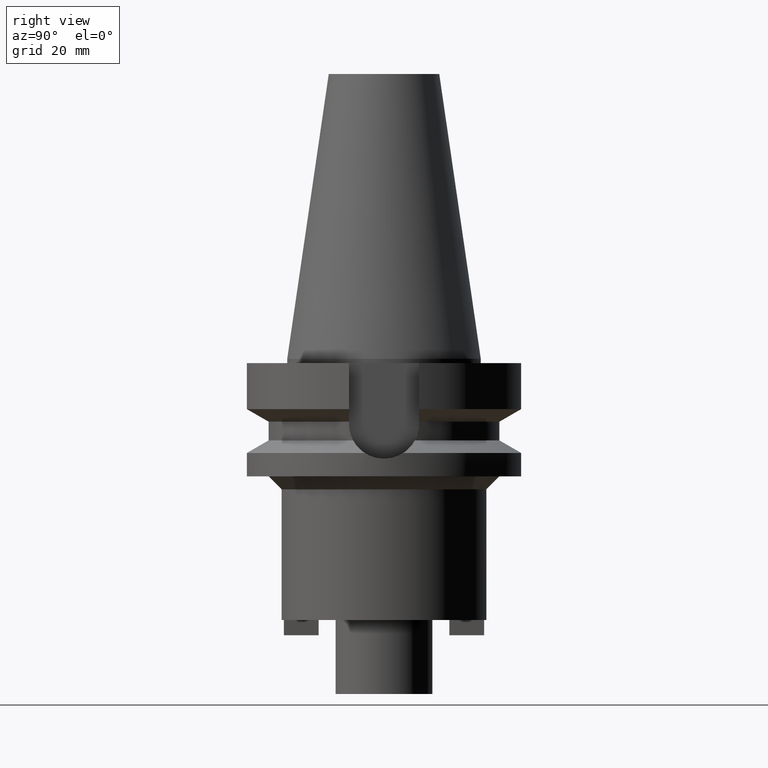
[diagram: clean part render]
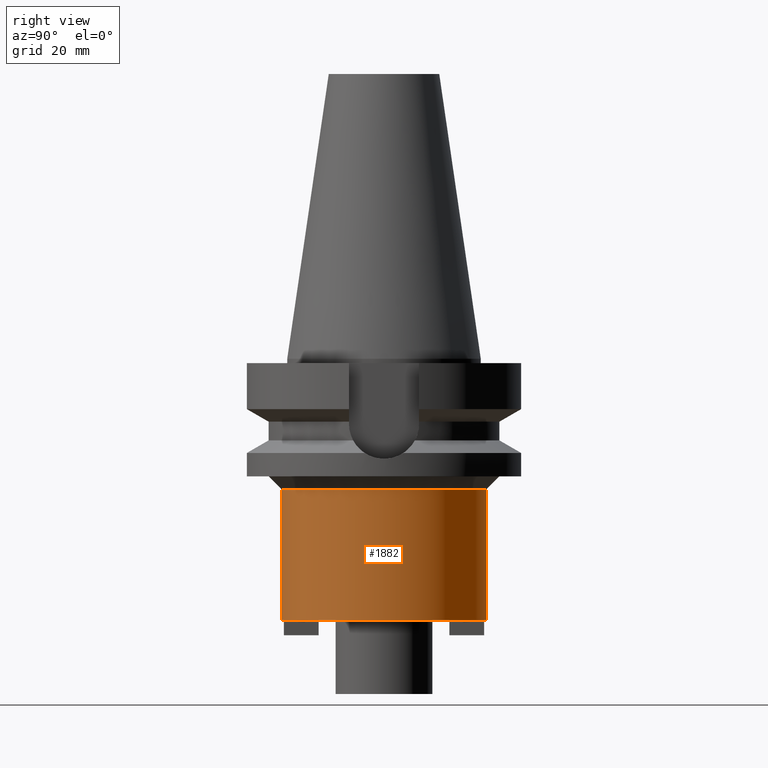
[diagram: same view with one face highlighted and labeled with its STEP entity id]
A machine part, right view. The second image highlights one B-rep face of the part: STEP entity #1882.
In plain terms, the highlighted cylindrical surface (partial cylindrical patch) has radius 23.5 mm, axis along (0, 0, -1).
Its self-contained STEP definition (entity closure, byte-faithful):
#682=CARTESIAN_POINT('',(0.E0,0.E0,-3.E1));
#683=DIRECTION('',(0.E0,0.E0,-1.E0));
#684=DIRECTION('',(0.E0,1.E0,0.E0));
#685=AXIS2_PLACEMENT_3D('',#682,#683,#684);
#690=DIRECTION('',(0.E0,0.E0,-1.E0));
#691=VECTOR('',#690,3.E1);
#692=CARTESIAN_POINT('',(0.E0,2.35E1,-3.E1));
#693=LINE('',#692,#691);
#697=DIRECTION('',(0.E0,0.E0,-1.E0));
#698=VECTOR('',#697,3.E1);
#699=CARTESIAN_POINT('',(0.E0,-2.35E1,-3.E1));
#700=LINE('',#699,#698);
#704=CARTESIAN_POINT('',(0.E0,2.112760657889E-14,-6.E1));
#705=DIRECTION('',(0.E0,0.E0,1.E0));
#706=DIRECTION('',(0.E0,-1.E0,0.E0));
#707=AXIS2_PLACEMENT_3D('',#704,#705,#706);
#1268=CARTESIAN_POINT('',(0.E0,-2.35E1,-6.E1));
#1269=CARTESIAN_POINT('',(0.E0,2.35E1,-6.E1));
#1270=VERTEX_POINT('',#1268);
#1271=VERTEX_POINT('',#1269);
#1288=CARTESIAN_POINT('',(0.E0,2.35E1,-3.E1));
#1289=VERTEX_POINT('',#1288);
#1290=CARTESIAN_POINT('',(0.E0,-2.35E1,-3.E1));
#1291=VERTEX_POINT('',#1290);
#1868=CARTESIAN_POINT('',(0.E0,2.112760657889E-14,7.252E1));
#1869=DIRECTION('',(0.E0,0.E0,-1.E0));
#1870=DIRECTION('',(0.E0,-1.E0,0.E0));
#1871=AXIS2_PLACEMENT_3D('',#1868,#1869,#1870);
#1872=CYLINDRICAL_SURFACE('',#1871,2.35E1);
#1874=ORIENTED_EDGE('',*,*,#1873,.T.);
#1876=ORIENTED_EDGE('',*,*,#1875,.F.);
#1878=ORIENTED_EDGE('',*,*,#1877,.F.);
#1879=ORIENTED_EDGE('',*,*,#1861,.F.);
#1880=EDGE_LOOP('',(#1874,#1876,#1878,#1879));
#1881=FACE_OUTER_BOUND('',#1880,.F.);
#686=CIRCLE('',#685,2.35E1);
#708=CIRCLE('',#707,2.35E1);
#1861=EDGE_CURVE('',#1289,#1291,#686,.T.);
#1873=EDGE_CURVE('',#1289,#1271,#693,.T.);
#1875=EDGE_CURVE('',#1270,#1271,#708,.T.);
#1877=EDGE_CURVE('',#1291,#1270,#700,.T.);
#1882=ADVANCED_FACE('',(#1881),#1872,.T.);